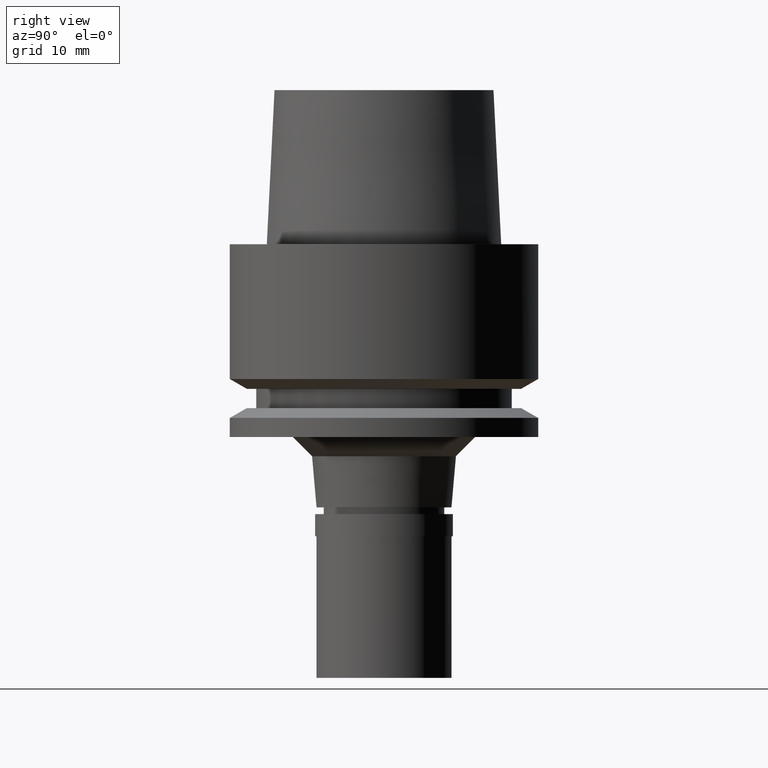
[diagram: clean part render]
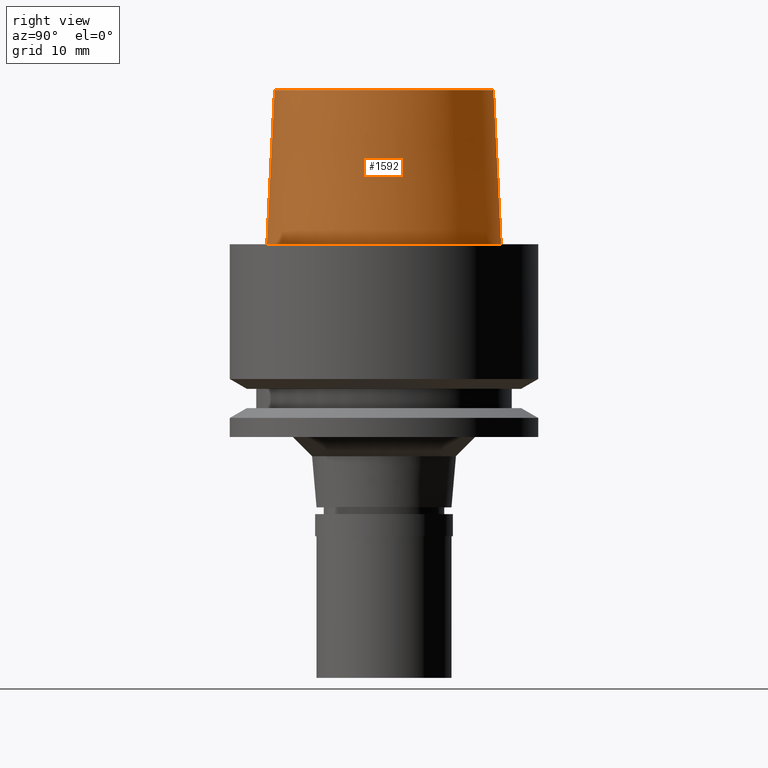
[diagram: same view with one face highlighted and labeled with its STEP entity id]
A machine part, right view. The second image highlights one B-rep face of the part: STEP entity #1592.
In plain terms, the highlighted conical surface has half-angle 2.862 deg.
Its self-contained STEP definition (entity closure, byte-faithful):
#236 = CONICAL_SURFACE ( 'NONE', #1775, 11.76000043892000058, 0.04995830450907576964 ) ;
#273 = VERTEX_POINT ( 'NONE', #2415 ) ;
#337 = DIRECTION ( 'NONE',  ( 0.0000000000000000000, 0.0000000000000000000, -1.000000000000000000 ) ) ;
#425 = CARTESIAN_POINT ( 'NONE',  ( 0.0000000000000000000, -12.15999970738999991, 1.989519660127999812E-13 ) ) ;
#534 = DIRECTION ( 'NONE',  ( 0.0000000000000000000, 0.04993752584492938684, -0.9987523434327887362 ) ) ;
#594 = DIRECTION ( 'NONE',  ( 0.0000000000000000000, 0.0000000000000000000, 1.000000000000000000 ) ) ;
#681 = EDGE_CURVE ( 'NONE', #2125, #777, #2149, .T. ) ;
#777 = VERTEX_POINT ( 'NONE', #2658 ) ;
#808 = CIRCLE ( 'NONE', #2328, 11.36000117044999946 ) ;
#838 = DIRECTION ( 'NONE',  ( 0.0000000000000000000, -0.04993752584492938684, -0.9987523434327887362 ) ) ;
#889 = AXIS2_PLACEMENT_3D ( 'NONE', #1407, #594, #2450 ) ;
#1056 = EDGE_CURVE ( 'NONE', #2371, #2125, #1217, .T. ) ;
#1134 = ORIENTED_EDGE ( 'NONE', *, *, #2269, .F. ) ;
#1145 = EDGE_LOOP ( 'NONE', ( #1924, #2310, #2426, #1134 ) ) ;
#1152 = LINE ( 'NONE', #1804, #1300 ) ;
#1217 = LINE ( 'NONE', #2665, #1331 ) ;
#1300 = VECTOR ( 'NONE', #534, 999.9999999999998863 ) ;
#1331 = VECTOR ( 'NONE', #838, 999.9999999999998863 ) ;
#1389 = EDGE_CURVE ( 'NONE', #273, #2371, #808, .T. ) ;
#1407 = CARTESIAN_POINT ( 'NONE',  ( 0.0000000000000000000, 0.0000000000000000000, 1.989519660127999812E-13 ) ) ;
#1482 = CARTESIAN_POINT ( 'NONE',  ( 0.0000000000000000000, 0.0000000000000000000, 16.00000000000000000 ) ) ;
#1592 = ADVANCED_FACE ( 'NONE', ( #2645 ), #236, .T. ) ;
#1775 = AXIS2_PLACEMENT_3D ( 'NONE', #2213, #337, #2013 ) ;
#1804 = CARTESIAN_POINT ( 'NONE',  ( 0.0000000000000000000, 11.36000117044000035, 16.00000000000000000 ) ) ;
#1884 = DIRECTION ( 'NONE',  ( 0.0000000000000000000, 0.0000000000000000000, -1.000000000000000000 ) ) ;
#1924 = ORIENTED_EDGE ( 'NONE', *, *, #1389, .T. ) ;
#1980 = CARTESIAN_POINT ( 'NONE',  ( 0.0000000000000000000, -11.36000117044000035, 16.00000000000000000 ) ) ;
#2013 = DIRECTION ( 'NONE',  ( 0.0000000000000000000, -1.000000000000000000, 0.0000000000000000000 ) ) ;
#2125 = VERTEX_POINT ( 'NONE', #425 ) ;
#2127 = DIRECTION ( 'NONE',  ( 0.0000000000000000000, 1.000000000000000000, 0.0000000000000000000 ) ) ;
#2149 = CIRCLE ( 'NONE', #889, 12.15999970738999991 ) ;
#2213 = CARTESIAN_POINT ( 'NONE',  ( 0.0000000000000000000, 0.0000000000000000000, 8.000000000000000000 ) ) ;
#2269 = EDGE_CURVE ( 'NONE', #273, #777, #1152, .T. ) ;
#2310 = ORIENTED_EDGE ( 'NONE', *, *, #1056, .T. ) ;
#2328 = AXIS2_PLACEMENT_3D ( 'NONE', #1482, #1884, #2127 ) ;
#2371 = VERTEX_POINT ( 'NONE', #1980 ) ;
#2415 = CARTESIAN_POINT ( 'NONE',  ( 0.0000000000000000000, 11.36000117044000035, 16.00000000000000000 ) ) ;
#2426 = ORIENTED_EDGE ( 'NONE', *, *, #681, .T. ) ;
#2450 = DIRECTION ( 'NONE',  ( 0.0000000000000000000, -1.000000000000000000, 0.0000000000000000000 ) ) ;
#2645 = FACE_OUTER_BOUND ( 'NONE', #1145, .T. ) ;
#2658 = CARTESIAN_POINT ( 'NONE',  ( 0.0000000000000000000, 12.15999970738999991, 3.907985046680999726E-14 ) ) ;
#2665 = CARTESIAN_POINT ( 'NONE',  ( 0.0000000000000000000, -11.36000117044000035, 16.00000000000000000 ) ) ;